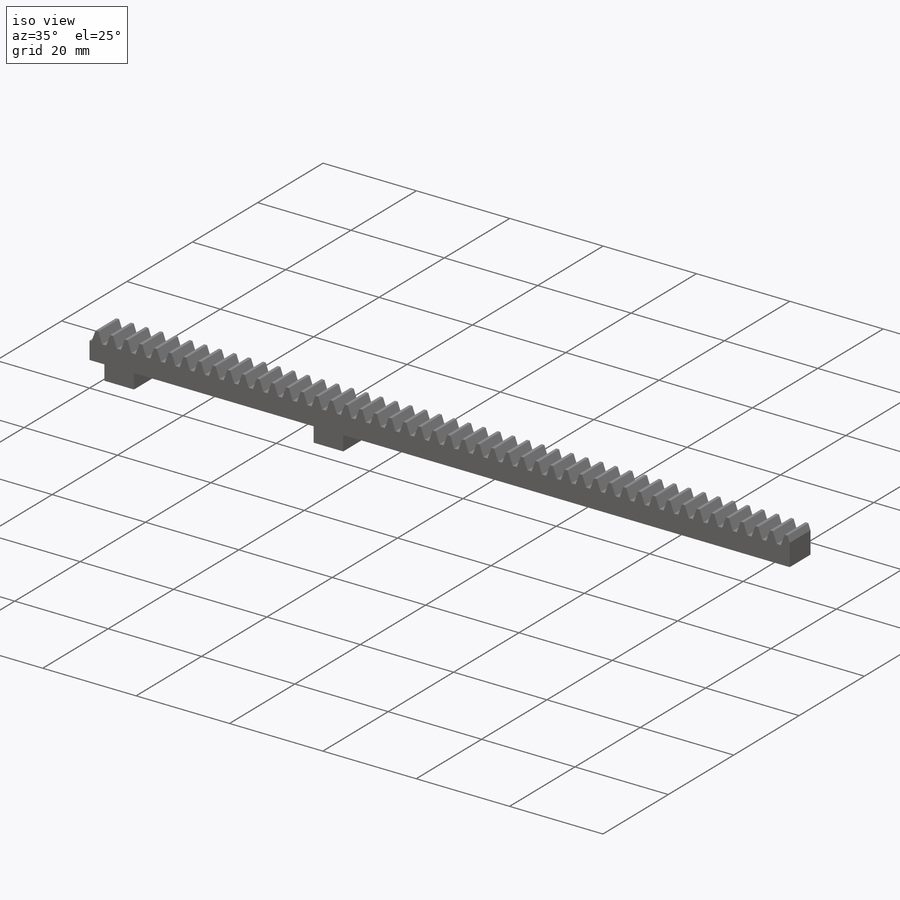
[diagram: iso view]
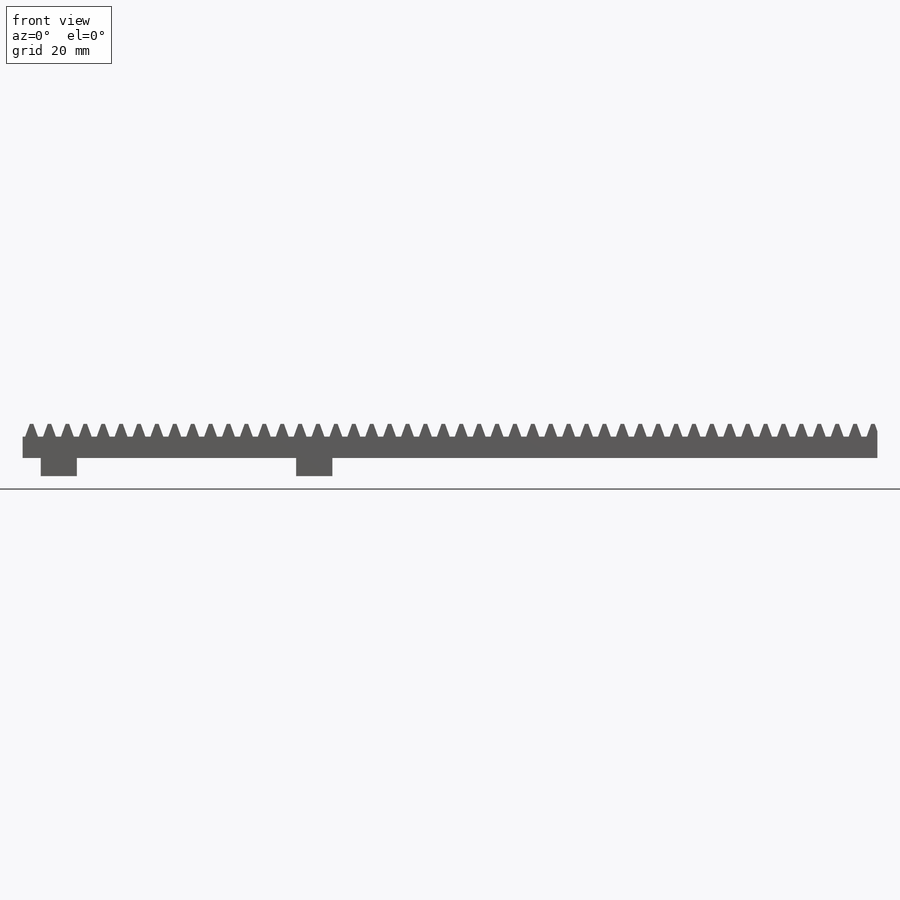
[diagram: front view]
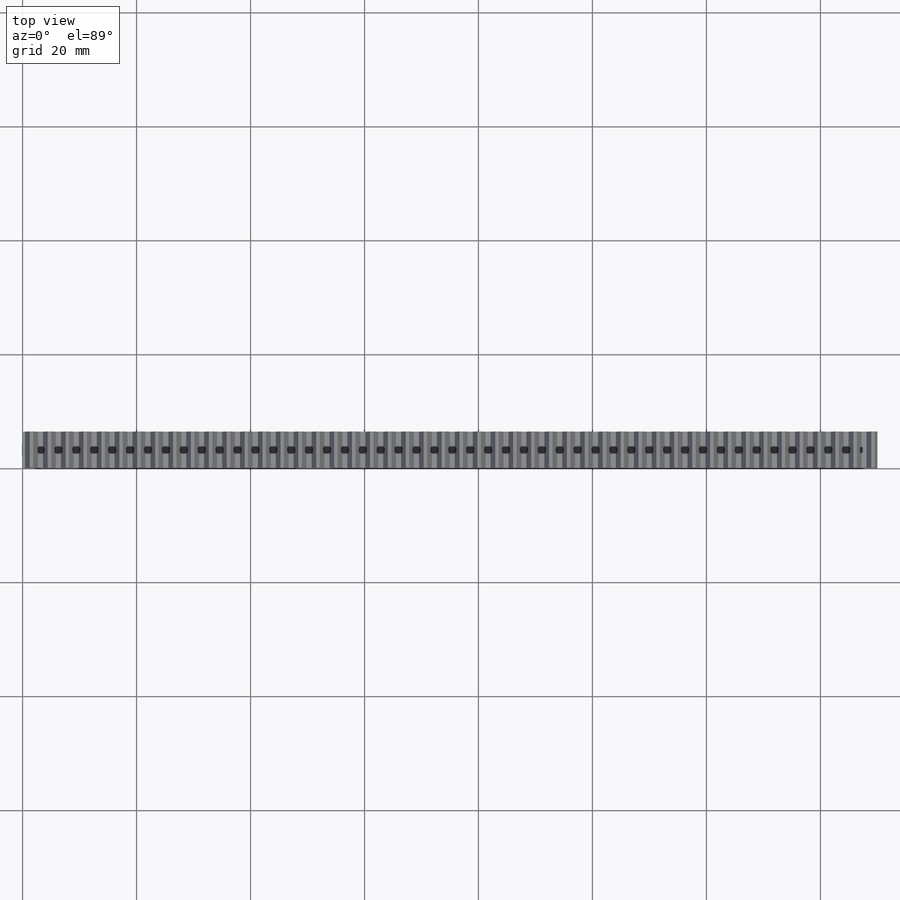
[diagram: top view]
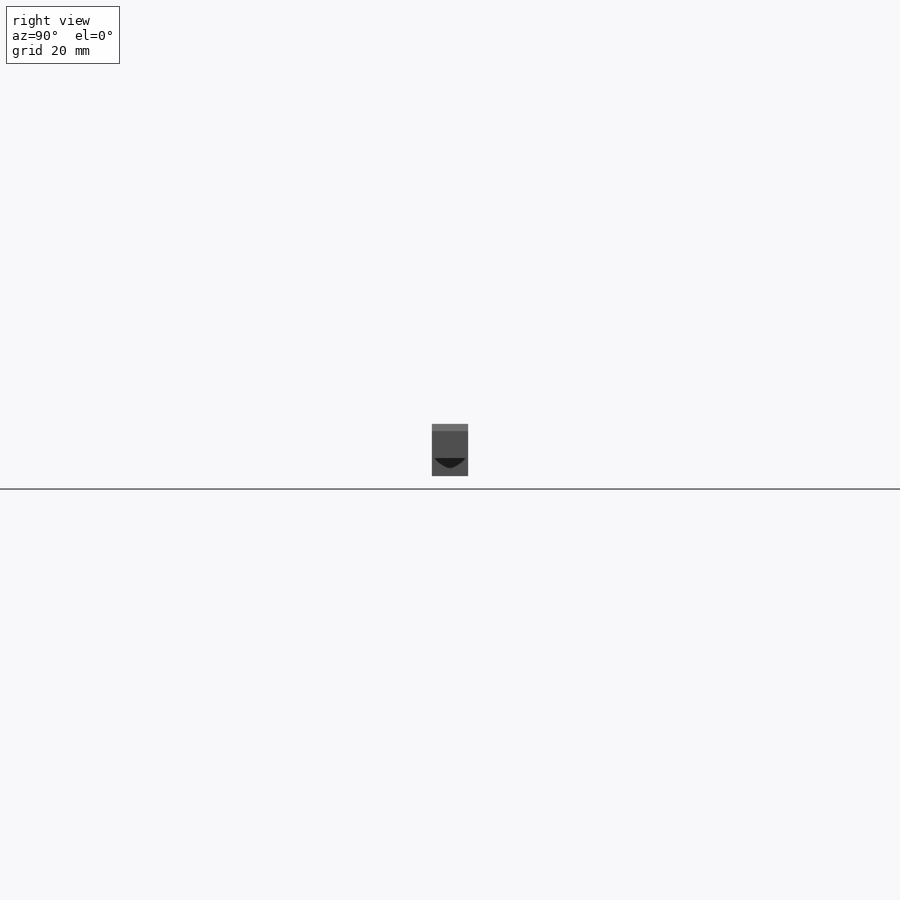
[diagram: right view]
SOLIDWORKS PART (.sldprt)
format: sldprt  version: not decoded by parser v0  size: 696,320 bytes
history: native  units: mm
features: sketch x5, plane x3, extrude x2, cut_extrude x2, material x1, pattern_linear x1 (+10 scaffold rows collapsed)
feature tree (24):
  scaffold x10  (default folders/planes/origin — collapsed)
  material  "Material <not specified>"
  plane  "Plane1"
  plane  "Plane2"
  plane  "Plane3"
  sketch  "HoldingSke"  dims[c1.Dr=15.875mm c1.MPH=5.0mm c1.Hub_dia=25.4mm c1.Diameter=38.1mm c1.Num_teeth=7.0mm c1.D1=115.0mm c2.Num_teeth=48.9999deg c2.Pitch_radius=~46.415395mm c2.Pitch=1.0mm c2.Width=8.636mm c2.Chamfer_wid=3.175mm c2.Chamfer_dep=12.7mm c2.Overall_len=25.4mm c2.D1=115.0mm c2.Show_teeth=998.0deg c2.Thickness=12.7mm c2.OAL=~25.400051mm c2.T_dim=21.59mm c3.D1=115.0mm c3.Ap=20.0deg c3.H=19.05mm c3.Pitch_height=5.0mm c3.Width=6.35mm c3.F=44.45mm c3.Backlash=0.038mm c3.Addendum_factor=~25.318689mm c3.Dedendum_factor=~11.91639mm c3.Fillet_factor=5.08mm c4.D1=~180.312849mm c4.Addendum_fac=1.0deg c5.D1=~180.312849mm c5.Dedendum_fac=1.25deg c6.D1=~180.312849mm c6.Clearance_fac=0.25deg c6.Dedendum_add=0.001mm c6.Length=150.0mm c6.Module=1.0mm]
  sketch  "BlankSke"  dims[Length=150.0mm Blank_height=6.0mm]
  extrude  "Blank"  Depth=6.35mm Face_width=6.35mm
  sketch  "TooCutSkeIll"  dims[c1.Root_fillet=0.251mm c1.Break_rad=0.04mm c1.D1=~12.298689mm c2.D1=~35.725861deg c2.Pitch_height=5.0mm c2.Gap_width=~1.798796mm c2.Dedendum=1.25mm c2.Addendum_plus=6.35mm c3.D1=64.897mm c3.Pressure_angle=20.0deg c4.D1=~0.717728mm c4.Addendum_plus=6.35mm c5.Addendum_plus=1.0254mm]
  cut_extrude  "ToothCutIll"  [1 undecoded]
  sketch  "TooCutSkeSim"  dims[c1.Pitch_height=5.0mm c1.D1=~14.860116mm c1.Pressure_angle=20.0deg c1.Gap_width=~1.798796mm c1.Dedendum=1.25mm c1.Addendum_plus=1.0254mm c2.D1=~15.20444mm]
  cut_extrude  "ToothCutSim"  [1 undecoded]
  pattern_linear  "TeethCuts"  Count1=49 Count2=1 Spacing1=3.141593mm Spacing2=50mm Num_teeth=49 Linear_pitch=3.141593mm
  sketch  "Sketch1"  dims[D1=48.0mm D2=6.35mm D3=3.175mm D4=6.35mm]
  extrude  "ElasticPegs_Extrude"  Depth=3.175mm
decode coverage: 8 of 10 modeling features carry decoded parameters
note: ~ marks probable driven/reference dimensions
note: 2 parameter values undecoded
note: suppression state not decoded; provenance and decode notes live in map.json
